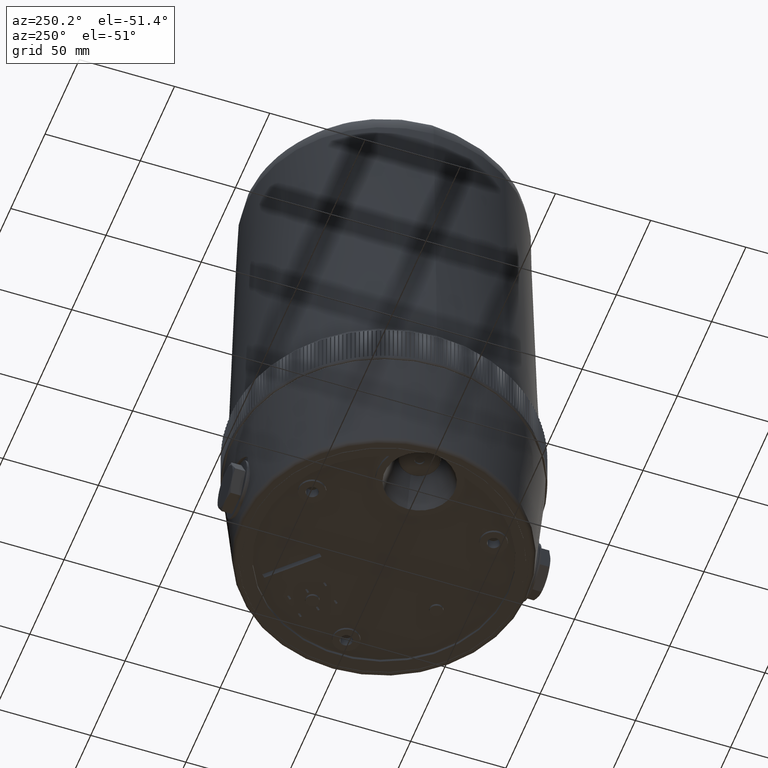
[diagram: clean part render]
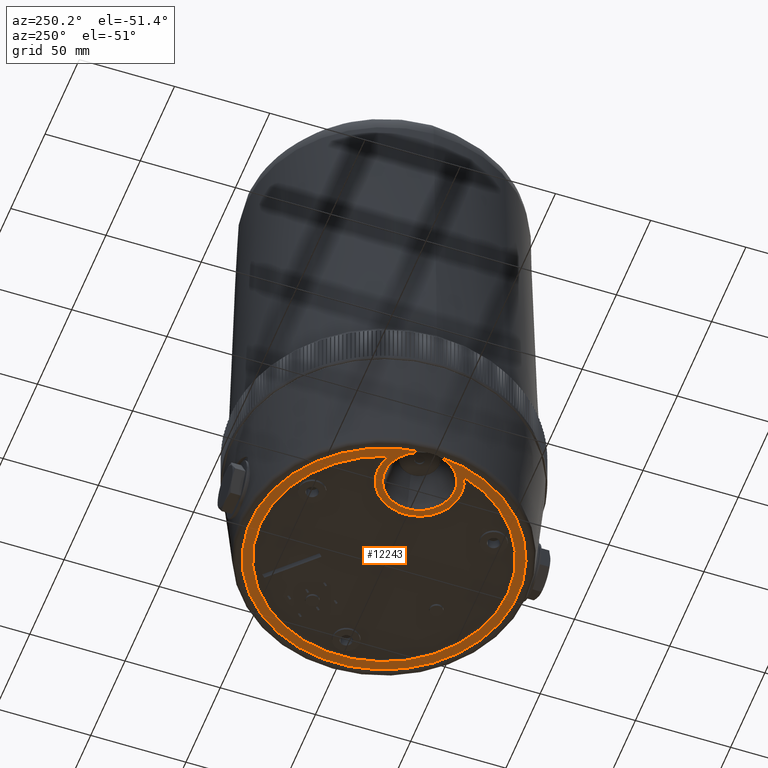
[diagram: same view with one face highlighted and labeled with its STEP entity id]
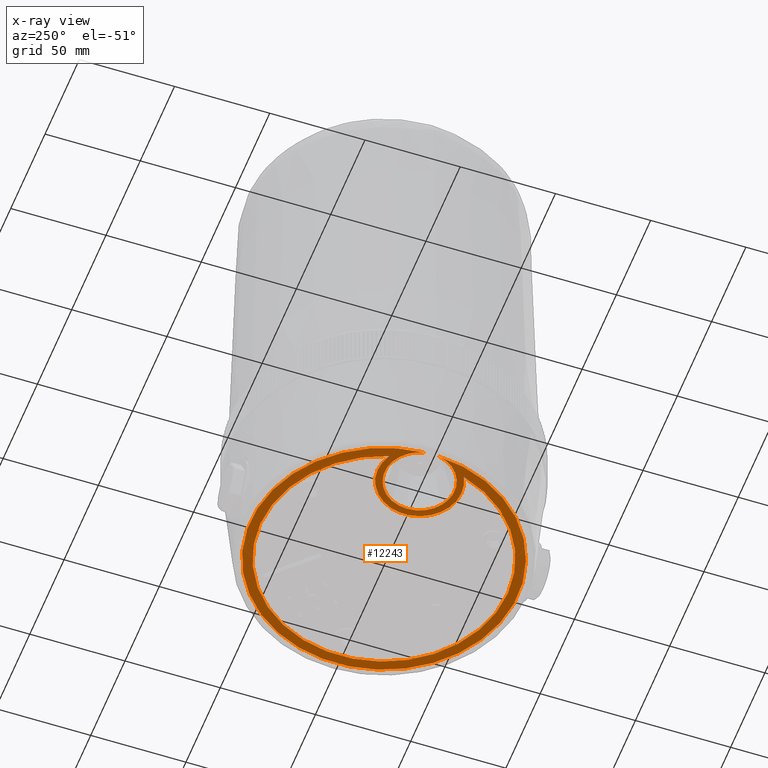
[diagram: x-ray of the same camera — body ghosted, the highlighted face saturated]
A machine part, auxiliary view. The second image highlights one B-rep face of the part: STEP entity #12243.
The next image is the same camera in x-ray: the body ghosted, the highlighted face saturated — about 0% of this face is hidden behind the body in this view.
In plain terms, the highlighted planar face has unit normal (0, 0, -1).
Its self-contained STEP definition (entity closure, byte-faithful):
#12243=ADVANCED_FACE('',(#13158,#13159),#13058,.T.);
#13058=PLANE('',#26414);
#13158=FACE_BOUND('',#14266,.T.);
#13159=FACE_BOUND('',#14267,.T.);
#14266=EDGE_LOOP('',(#19344,#19345));
#14267=EDGE_LOOP('',(#19346,#19347));
#19344=ORIENTED_EDGE('',*,*,#23670,.T.);
#19345=ORIENTED_EDGE('',*,*,#23662,.T.);
#19346=ORIENTED_EDGE('',*,*,#23658,.F.);
#19347=ORIENTED_EDGE('',*,*,#23643,.T.);
#21086=VERTEX_POINT('',#37399);
#21087=VERTEX_POINT('',#37400);
#21099=VERTEX_POINT('',#37613);
#21100=VERTEX_POINT('',#37615);
#23643=EDGE_CURVE('',#21086,#21087,#24592,.T.);
#23658=EDGE_CURVE('',#21086,#21087,#24597,.T.);
#23662=EDGE_CURVE('',#21100,#21099,#24600,.T.);
#23670=EDGE_CURVE('',#21099,#21100,#24606,.T.);
#24592=CIRCLE('',#26340,65.);
#24597=CIRCLE('',#26348,22.);
#24600=CIRCLE('',#26352,18.3771907798607);
#24606=CIRCLE('',#26363,70.15);
#26340=AXIS2_PLACEMENT_3D('',#37398,#31113,#31114);
#26348=AXIS2_PLACEMENT_3D('',#37602,#31131,#31132);
#26352=AXIS2_PLACEMENT_3D('',#37614,#31139,#31140);
#26363=AXIS2_PLACEMENT_3D('',#37643,#31161,#31162);
#26414=AXIS2_PLACEMENT_3D('',#37838,#31347,#31348);
#31113=DIRECTION('',(0.,0.,1.));
#31114=DIRECTION('',(-1.,0.,0.));
#31131=DIRECTION('',(0.,0.,1.));
#31132=DIRECTION('',(0.,-1.,0.));
#31139=DIRECTION('',(0.,0.,1.));
#31140=DIRECTION('',(-1.,0.,0.));
#31161=DIRECTION('',(0.,0.,-1.));
#31162=DIRECTION('',(-1.,0.,0.));
#31347=DIRECTION('',(0.,0.,-1.));
#31348=DIRECTION('',(0.,-1.,0.));
#37398=CARTESIAN_POINT('',(7.37257477290143E-015,0.,-40.5));
#37399=CARTESIAN_POINT('',(-61.9711538461539,-19.6106116930688,-40.5));
#37400=CARTESIAN_POINT('',(-61.9711538461539,19.6106116930688,-40.5));
#37602=CARTESIAN_POINT('',(-51.9999999999998,1.094488E-014,-40.5));
#37613=CARTESIAN_POINT('',(-70.0702053753904,3.34496915540525,-40.5));
#37614=CARTESIAN_POINT('',(-52.,3.430906E-013,-40.5));
#37615=CARTESIAN_POINT('',(-70.0702053753904,-3.34496915540432,-40.5));
#37643=CARTESIAN_POINT('',(7.37257477290143E-015,0.,-40.5));
#37838=CARTESIAN_POINT('',(-66.3425463491583,0.,-40.5));